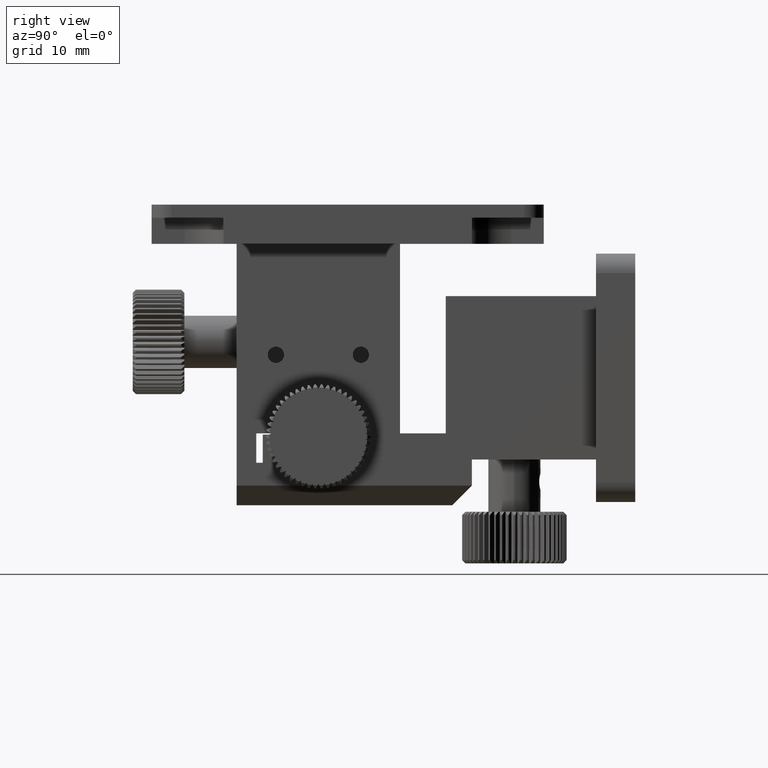
[diagram: clean part render]
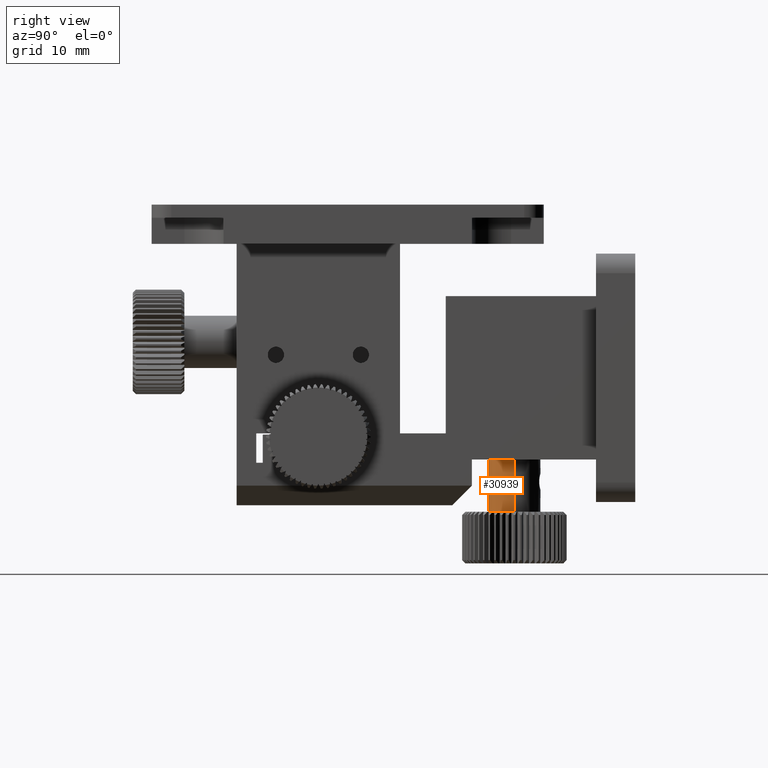
[diagram: same view with one face highlighted and labeled with its STEP entity id]
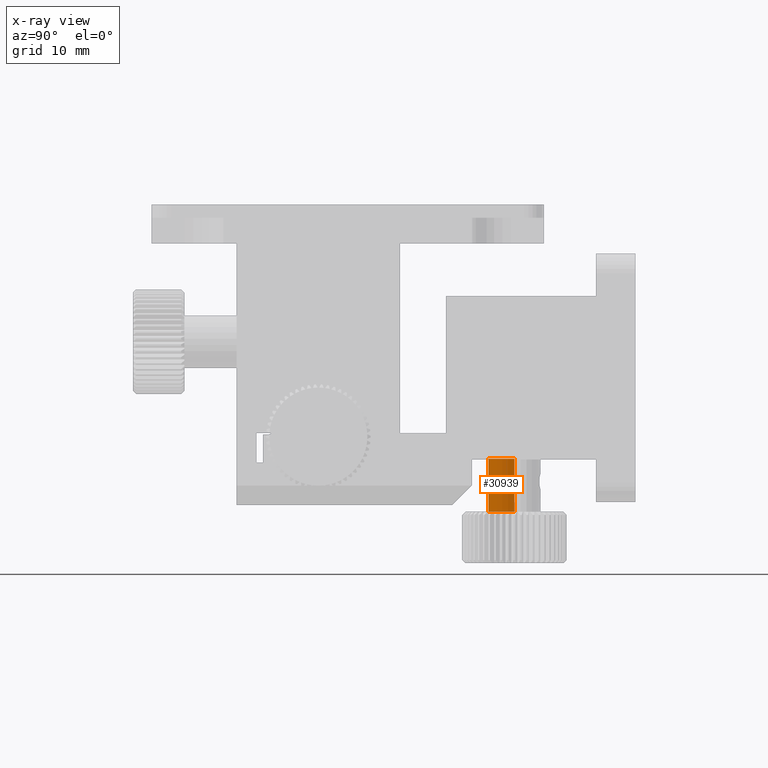
[diagram: x-ray of the same camera — body ghosted, the highlighted face saturated]
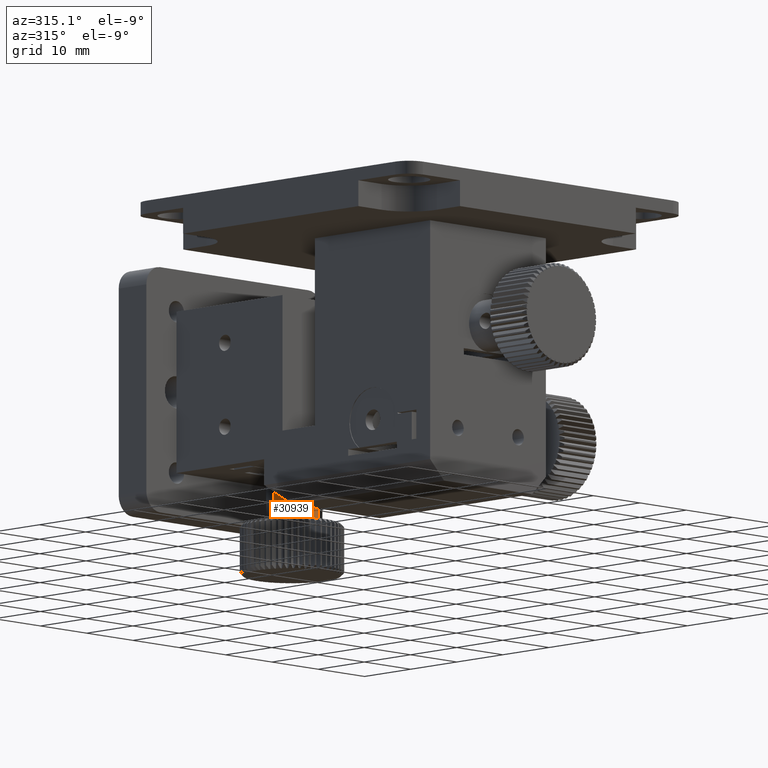
[diagram: same view with one face highlighted and labeled with its STEP entity id]
A machine part, right view. The second image highlights one B-rep face of the part: STEP entity #30939.
The next image is the same camera in x-ray: the body ghosted, the highlighted face saturated — about 0% of this face is hidden behind the body in this view.
A second angle (auxiliary view) of the same face is appended — the face is thin or edge-on in the first view.
In plain terms, the highlighted cylindrical surface (edge-blend (fillet) strip) has radius 4 mm, axis along (-0, 0, -1).
Its self-contained STEP definition (entity closure, byte-faithful):
#210 = FACE_OUTER_BOUND ( 'NONE', #19440, .T. ) ;
#1135 = CIRCLE ( 'NONE', #21787, 4.000000000000017800 ) ;
#1365 = ORIENTED_EDGE ( 'NONE', *, *, #35194, .F. ) ;
#2299 = VERTEX_POINT ( 'NONE', #17490 ) ;
#5738 = ORIENTED_EDGE ( 'NONE', *, *, #7047, .F. ) ;
#5752 = VECTOR ( 'NONE', #17023, 1000.000000000000000 ) ;
#6734 = DIRECTION ( 'NONE',  ( -1.000000000000000000, 0.0000000000000000000, 0.0000000000000000000 ) ) ;
#7047 = EDGE_CURVE ( 'NONE', #38201, #19979, #1135, .T. ) ;
#10367 = CARTESIAN_POINT ( 'NONE',  ( -4.000000000000011500, 25.50000000000000400, -40.99999999999999300 ) ) ;
#12409 = CYLINDRICAL_SURFACE ( 'NONE', #25097, 4.000000000000017800 ) ;
#12541 = DIRECTION ( 'NONE',  ( -1.829281821543779500E-016, 2.213521730899513700E-016, -1.000000000000000000 ) ) ;
#13698 = CARTESIAN_POINT ( 'NONE',  ( 4.000000000000007100, 25.50000000000000400, -32.89999999999999900 ) ) ;
#14433 = CARTESIAN_POINT ( 'NONE',  ( -1.156529343080648100E-014, 25.49999999999996800, -40.99999999999999300 ) ) ;
#15292 = EDGE_CURVE ( 'NONE', #38201, #25068, #31177, .T. ) ;
#17023 = DIRECTION ( 'NONE',  ( -1.829281821543779500E-016, 2.213521730899513700E-016, -1.000000000000000000 ) ) ;
#17454 = DIRECTION ( 'NONE',  ( 1.000000000000000000, 0.0000000000000000000, 0.0000000000000000000 ) ) ;
#17490 = CARTESIAN_POINT ( 'NONE',  ( 3.999999999999988900, 25.50000000000000400, -40.99999999999999300 ) ) ;
#19440 = EDGE_LOOP ( 'NONE', ( #1365, #5738, #38408, #27349 ) ) ;
#19979 = VERTEX_POINT ( 'NONE', #27161 ) ;
#20022 = VECTOR ( 'NONE', #25090, 1000.000000000000000 ) ;
#21380 = CARTESIAN_POINT ( 'NONE',  ( -1.008357515535602900E-014, 25.50000000000000400, -32.89999999999999900 ) ) ;
#21787 = AXIS2_PLACEMENT_3D ( 'NONE', #23017, #28464, #34741 ) ;
#22717 = LINE ( 'NONE', #13698, #5752 ) ;
#23017 = CARTESIAN_POINT ( 'NONE',  ( -1.008357515535602900E-014, 25.50000000000000400, -32.89999999999999900 ) ) ;
#24267 = EDGE_CURVE ( 'NONE', #25068, #2299, #31813, .T. ) ;
#25068 = VERTEX_POINT ( 'NONE', #10367 ) ;
#25090 = DIRECTION ( 'NONE',  ( -1.829281821543779500E-016, 2.213521730899513700E-016, -1.000000000000000000 ) ) ;
#25097 = AXIS2_PLACEMENT_3D ( 'NONE', #21380, #12541, #6734 ) ;
#27161 = CARTESIAN_POINT ( 'NONE',  ( 3.999999999999989800, 25.50000000000000400, -32.89999999999999900 ) ) ;
#27349 = ORIENTED_EDGE ( 'NONE', *, *, #24267, .T. ) ;
#27925 = CARTESIAN_POINT ( 'NONE',  ( -4.000000000000027500, 25.50000000000000400, -32.89999999999999900 ) ) ;
#28464 = DIRECTION ( 'NONE',  ( 1.829281821543779500E-016, -2.213521730899513700E-016, 1.000000000000000000 ) ) ;
#30939 = ADVANCED_FACE ( 'NONE', ( #210 ), #12409, .T. ) ;
#31177 = LINE ( 'NONE', #27925, #20022 ) ;
#31813 = CIRCLE ( 'NONE', #32898, 4.000000000000017800 ) ;
#32898 = AXIS2_PLACEMENT_3D ( 'NONE', #14433, #35166, #17454 ) ;
#34741 = DIRECTION ( 'NONE',  ( 1.000000000000000000, 0.0000000000000000000, 0.0000000000000000000 ) ) ;
#35166 = DIRECTION ( 'NONE',  ( 1.829281821543779500E-016, -2.213521730899513700E-016, 1.000000000000000000 ) ) ;
#35194 = EDGE_CURVE ( 'NONE', #19979, #2299, #22717, .T. ) ;
#37127 = CARTESIAN_POINT ( 'NONE',  ( -4.000000000000010700, 25.50000000000000400, -32.89999999999999900 ) ) ;
#38201 = VERTEX_POINT ( 'NONE', #37127 ) ;
#38408 = ORIENTED_EDGE ( 'NONE', *, *, #15292, .T. ) ;